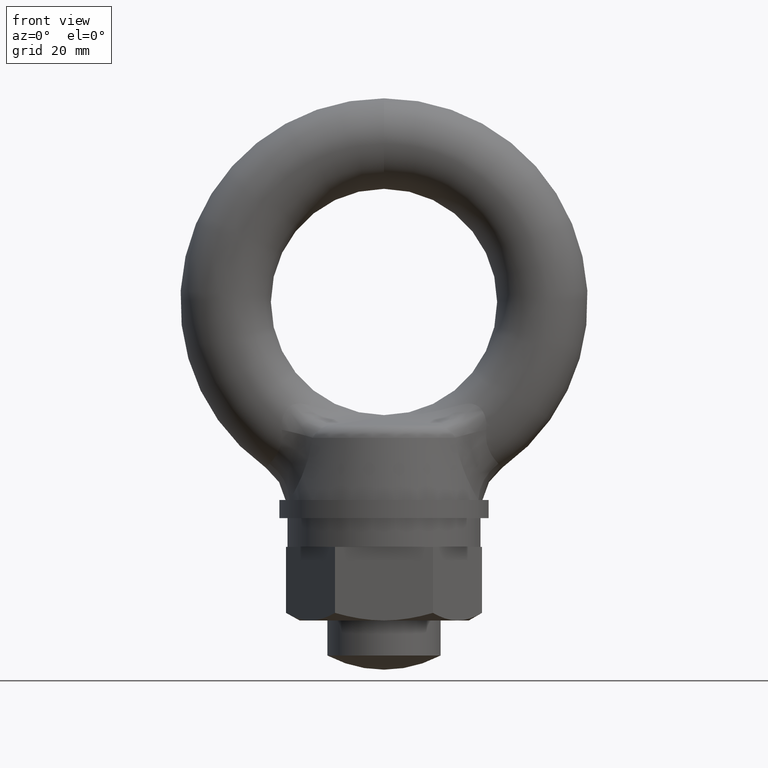
[diagram: clean part render]
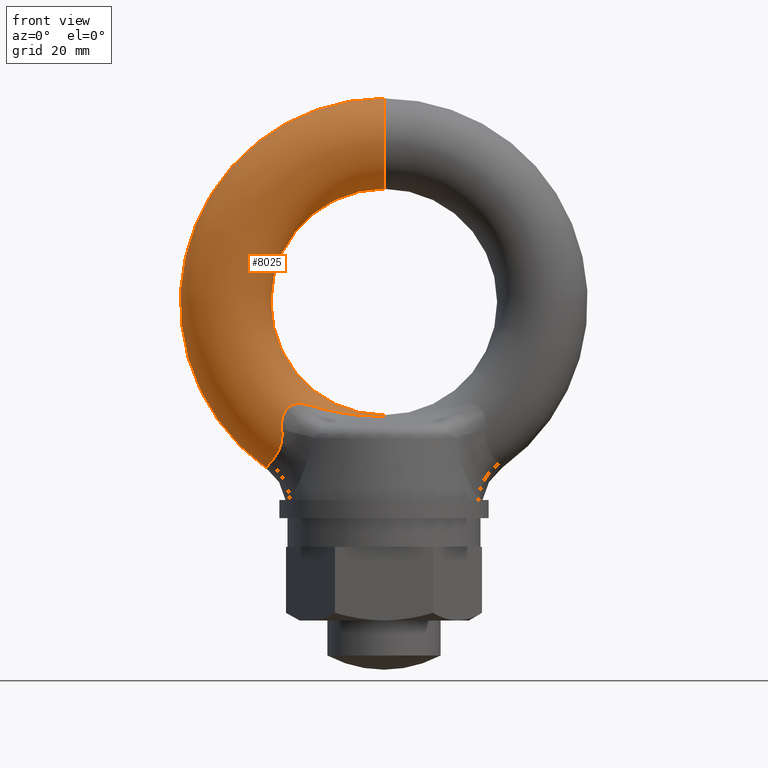
[diagram: same view with one face highlighted and labeled with its STEP entity id]
A machine part, front view. The second image highlights one B-rep face of the part: STEP entity #8025.
In plain terms, the highlighted toroidal blend (fillet) surface has major radius 28 mm and minor (blend) radius 8 mm.
Its self-contained STEP definition (entity closure, byte-faithful):
#4974 = DIRECTION ( 'NONE',  ( 0.0000000000000000000, 0.0000000000000000000, -1.000000000000000000 ) ) ;
#4975 = DIRECTION ( 'NONE',  ( 0.0000000000000000000, -1.000000000000000000, 0.0000000000000000000 ) ) ;
#5133 = CARTESIAN_POINT ( 'NONE',  ( 0.0000000000000000000, 9.796850830579018100E-016, 0.0000000000000000000 ) ) ;
#5134 = AXIS2_PLACEMENT_3D ( 'NONE', #5133, #4975, #4974 ) ;
#5135 = CIRCLE ( 'NONE', #5134, 20.00000000000000000 ) ;
#5137 = DIRECTION ( 'NONE',  ( 0.0000000000000000000, 0.0000000000000000000, 1.000000000000000000 ) ) ;
#5138 = DIRECTION ( 'NONE',  ( -1.000000000000000000, 0.0000000000000000000, 0.0000000000000000000 ) ) ;
#5139 = CARTESIAN_POINT ( 'NONE',  ( 0.0000000000000000000, 0.0000000000000000000, -28.00000000000000000 ) ) ;
#5140 = AXIS2_PLACEMENT_3D ( 'NONE', #5139, #5138, #5137 ) ;
#5141 = CIRCLE ( 'NONE', #5140, 8.000000000000000000 ) ;
#7950 = VERTEX_POINT ( 'NONE', #8684 ) ;
#7967 = ORIENTED_EDGE ( 'NONE', *, *, #7968, .T. ) ;
#7968 = EDGE_CURVE ( 'NONE', #7950, #7969, #8460, .T. ) ;
#7969 = VERTEX_POINT ( 'NONE', #8461 ) ;
#7970 = VERTEX_POINT ( 'NONE', #8459 ) ;
#8023 = EDGE_LOOP ( 'NONE', ( #8026, #8030, #8033, #8036, #8039, #7967, #8280, #8282 ) ) ;
#8025 = ADVANCED_FACE ( 'NONE', ( #8574 ), #8572, .T. ) ;
#8026 = ORIENTED_EDGE ( 'NONE', *, *, #8027, .F. ) ;
#8027 = EDGE_CURVE ( 'NONE', #8028, #8029, #8568, .T. ) ;
#8028 = VERTEX_POINT ( 'NONE', #8563 ) ;
#8029 = VERTEX_POINT ( 'NONE', #8562 ) ;
#8030 = ORIENTED_EDGE ( 'NONE', *, *, #8031, .T. ) ;
#8031 = EDGE_CURVE ( 'NONE', #8028, #8032, #8561, .T. ) ;
#8032 = VERTEX_POINT ( 'NONE', #8556 ) ;
#8033 = ORIENTED_EDGE ( 'NONE', *, *, #8034, .T. ) ;
#8034 = EDGE_CURVE ( 'NONE', #8032, #8035, #8555, .T. ) ;
#8035 = VERTEX_POINT ( 'NONE', #8554 ) ;
#8036 = ORIENTED_EDGE ( 'NONE', *, *, #8037, .T. ) ;
#8037 = EDGE_CURVE ( 'NONE', #8035, #8038, #8661, .T. ) ;
#8038 = VERTEX_POINT ( 'NONE', #8711 ) ;
#8039 = ORIENTED_EDGE ( 'NONE', *, *, #8040, .T. ) ;
#8040 = EDGE_CURVE ( 'NONE', #8038, #7950, #8929, .T. ) ;
#8280 = ORIENTED_EDGE ( 'NONE', *, *, #8281, .T. ) ;
#8281 = EDGE_CURVE ( 'NONE', #7969, #7970, #5141, .T. ) ;
#8282 = ORIENTED_EDGE ( 'NONE', *, *, #8283, .F. ) ;
#8283 = EDGE_CURVE ( 'NONE', #8029, #7970, #5135, .T. ) ;
#8446 = CARTESIAN_POINT ( 'NONE',  ( -1.442697845560770200, -1.861999122008241200, -20.16971613795676200 ) ) ;
#8447 = CARTESIAN_POINT ( 'NONE',  ( -2.288186762667789900, -2.095962064465069400, -20.15610451816338500 ) ) ;
#8448 = CARTESIAN_POINT ( 'NONE',  ( -2.844284425707784600, -2.275894574762710400, -20.13577273363174000 ) ) ;
#8449 = CARTESIAN_POINT ( 'NONE',  ( -4.507113680566904500, -2.822904474455817200, -20.03377866517443800 ) ) ;
#8450 = CARTESIAN_POINT ( 'NONE',  ( -5.607621948508660000, -3.204019384009087400, -19.91148190844952000 ) ) ;
#8451 = CARTESIAN_POINT ( 'NONE',  ( -7.792840797011284500, -3.963240333849474600, -19.57153100779552800 ) ) ;
#8452 = CARTESIAN_POINT ( 'NONE',  ( -8.874770829690676900, -4.343217868695373500, -19.35477693205997000 ) ) ;
#8453 = CARTESIAN_POINT ( 'NONE',  ( -11.02624808514249800, -5.094259217671004900, -18.85268854059859900 ) ) ;
#8454 = CARTESIAN_POINT ( 'NONE',  ( -12.09568278882729900, -5.465681299482348300, -18.56740552890373800 ) ) ;
#8455 = CARTESIAN_POINT ( 'NONE',  ( -13.16581114616844100, -5.822891640927250200, -18.26337593279295000 ) ) ;
#8459 = CARTESIAN_POINT ( 'NONE',  ( 0.0000000000000000000, 9.796850830579018100E-016, -20.00000000000000000 ) ) ;
#8460 = B_SPLINE_CURVE_WITH_KNOTS ( 'NONE', 3,
 ( #8455, #8454, #8453, #8452, #8451, #8450, #8449, #8448, #8447, #8446, #8655, #8654, #8653, #8652 ),
 .UNSPECIFIED., .F., .F.,
 ( 4, 2, 2, 2, 2, 2, 4 ),
 ( 0.0000000000000000000, 0.003500089843752328500, 0.007000179687504657000, 0.01050026953125698600, 0.01225031445313314900, 0.01312533691407123200, 0.01400035937500931400 ),
 .UNSPECIFIED. ) ;
#8461 = CARTESIAN_POINT ( 'NONE',  ( -6.801776097265342600E-013, -1.648912988659337200, -20.17177632180642600 ) ) ;
#8549 = CARTESIAN_POINT ( 'NONE',  ( -20.73540599022221900, -1.666234829499332100, -29.22248958426969200 ) ) ;
#8550 = CARTESIAN_POINT ( 'NONE',  ( -20.76888547548118400, -1.332880035850257500, -29.27674697320311700 ) ) ;
#8551 = CARTESIAN_POINT ( 'NONE',  ( -20.81241227235394900, -0.6665516782714794300, -29.34876666378846700 ) ) ;
#8552 = CARTESIAN_POINT ( 'NONE',  ( -20.82274396233959400, -0.3333125823818162700, -29.36687477207695100 ) ) ;
#8553 = CARTESIAN_POINT ( 'NONE',  ( -20.82274396233959700, -4.779909794809850600E-016, -29.36687477207695500 ) ) ;
#8554 = CARTESIAN_POINT ( 'NONE',  ( -20.22635143677735000, -3.850677136497690200, -28.57893508878720100 ) ) ;
#8555 = B_SPLINE_CURVE_WITH_KNOTS ( 'NONE', 3,
 ( #8553, #8552, #8551, #8550, #8549, #8665, #8664, #8663 ),
 .UNSPECIFIED., .F., .F.,
 ( 4, 2, 2, 4 ),
 ( 0.004061130604967868800, 0.005076329865826367300, 0.006091529126684865800, 0.008121927648401864500 ),
 .UNSPECIFIED. ) ;
#8556 = CARTESIAN_POINT ( 'NONE',  ( -20.82274396233959700, -4.779909794809850600E-016, -29.36687477207695500 ) ) ;
#8557 = DIRECTION ( 'NONE',  ( 0.0000000000000000000, 0.0000000000000000000, -1.000000000000000000 ) ) ;
#8558 = DIRECTION ( 'NONE',  ( 0.0000000000000000000, -1.000000000000000000, 0.0000000000000000000 ) ) ;
#8559 = CARTESIAN_POINT ( 'NONE',  ( 0.0000000000000000000, 0.0000000000000000000, 0.0000000000000000000 ) ) ;
#8560 = AXIS2_PLACEMENT_3D ( 'NONE', #8559, #8558, #8557 ) ;
#8561 = CIRCLE ( 'NONE', #8560, 36.00000000000000700 ) ;
#8562 = CARTESIAN_POINT ( 'NONE',  ( 2.449212707644754900E-015, 0.0000000000000000000, 20.00000000000000000 ) ) ;
#8563 = CARTESIAN_POINT ( 'NONE',  ( 4.408582873760558900E-015, 0.0000000000000000000, 36.00000000000000700 ) ) ;
#8564 = DIRECTION ( 'NONE',  ( -1.224606353822377000E-016, 0.0000000000000000000, -1.000000000000000000 ) ) ;
#8565 = DIRECTION ( 'NONE',  ( 1.000000000000000000, 0.0000000000000000000, -1.224606353822377300E-016 ) ) ;
#8566 = CARTESIAN_POINT ( 'NONE',  ( 3.428897790702656300E-015, 0.0000000000000000000, 28.00000000000000000 ) ) ;
#8567 = AXIS2_PLACEMENT_3D ( 'NONE', #8566, #8565, #8564 ) ;
#8568 = CIRCLE ( 'NONE', #8567, 8.000000000000000000 ) ;
#8569 = DIRECTION ( 'NONE',  ( 0.0000000000000000000, 0.0000000000000000000, -1.000000000000000000 ) ) ;
#8570 = DIRECTION ( 'NONE',  ( 0.0000000000000000000, -1.000000000000000000, 0.0000000000000000000 ) ) ;
#8571 = AXIS2_PLACEMENT_3D ( 'NONE', #8573, #8570, #8569 ) ;
#8572 = TOROIDAL_SURFACE ( 'NONE', #8571, 28.00000000000000000, 8.000000000000000000 ) ;
#8573 = CARTESIAN_POINT ( 'NONE',  ( 0.0000000000000000000, 0.0000000000000000000, 0.0000000000000000000 ) ) ;
#8574 = FACE_OUTER_BOUND ( 'NONE', #8023, .T. ) ;
#8652 = CARTESIAN_POINT ( 'NONE',  ( -6.801776097265342600E-013, -1.648912988659337200, -20.17177632180642600 ) ) ;
#8653 = CARTESIAN_POINT ( 'NONE',  ( -0.2927174952643083500, -1.648912988659391600, -20.17177632180643000 ) ) ;
#8654 = CARTESIAN_POINT ( 'NONE',  ( -0.5844058307862495200, -1.682952176673653500, -20.17240612736618000 ) ) ;
#8655 = CARTESIAN_POINT ( 'NONE',  ( -1.158679247754199400, -1.790291525782435900, -20.17148670969874800 ) ) ;
#8661 = B_SPLINE_CURVE_WITH_KNOTS ( 'NONE', 3,
 ( #8903, #8902, #8901, #8900, #8710, #8709, #8708, #8707, #8729, #8728, #8727, #8726, #8725, #8724, #8932, #8931 ),
 .UNSPECIFIED., .F., .F.,
 ( 4, 2, 2, 2, 2, 2, 2, 4 ),
 ( 0.01610551802902950400, 0.01711428254501621100, 0.01812304706100292100, 0.02014057609297633900, 0.02114934060896304900, 0.02215810512494975600, 0.02316686964093646700, 0.02417563415692317700 ),
 .UNSPECIFIED. ) ;
#8663 = CARTESIAN_POINT ( 'NONE',  ( -20.22635143677735000, -3.850677136497690200, -28.57893508878720100 ) ) ;
#8664 = CARTESIAN_POINT ( 'NONE',  ( -20.45218448737302100, -3.258859881794897700, -28.81724781712205500 ) ) ;
#8665 = CARTESIAN_POINT ( 'NONE',  ( -20.59603642070353400, -2.638285941380809500, -29.01523389992597400 ) ) ;
#8684 = CARTESIAN_POINT ( 'NONE',  ( -13.16581114616844100, -5.822891640927250200, -18.26337593279295000 ) ) ;
#8707 = CARTESIAN_POINT ( 'NONE',  ( -18.52675622652377600, -6.940743853943771100, -26.08212912476770700 ) ) ;
#8708 = CARTESIAN_POINT ( 'NONE',  ( -18.89647459336574500, -6.400572332127117300, -26.86654441111974700 ) ) ;
#8709 = CARTESIAN_POINT ( 'NONE',  ( -19.18056745787588800, -5.971913125181020900, -27.30223167005001300 ) ) ;
#8710 = CARTESIAN_POINT ( 'NONE',  ( -19.59844567961869200, -5.230220122879413400, -27.86015683620673000 ) ) ;
#8711 = CARTESIAN_POINT ( 'NONE',  ( -18.07603648372269600, -7.945372300636390300, -22.59188056541010100 ) ) ;
#8713 = CARTESIAN_POINT ( 'NONE',  ( -18.12260647304777500, -7.994548373312367700, -21.87993876361077000 ) ) ;
#8714 = CARTESIAN_POINT ( 'NONE',  ( -18.11356389061676700, -7.975347067419112300, -22.23504698598968300 ) ) ;
#8715 = CARTESIAN_POINT ( 'NONE',  ( -18.07603648372269600, -7.945372300636390300, -22.59188056541010100 ) ) ;
#8724 = CARTESIAN_POINT ( 'NONE',  ( -18.02294308099864400, -7.875853099239254400, -23.26748662458160800 ) ) ;
#8725 = CARTESIAN_POINT ( 'NONE',  ( -18.03220608410685300, -7.758872730580870700, -23.93743834888671500 ) ) ;
#8726 = CARTESIAN_POINT ( 'NONE',  ( -18.05958299474205500, -7.682464375572249300, -24.27030221711562800 ) ) ;
#8727 = CARTESIAN_POINT ( 'NONE',  ( -18.15940386058476000, -7.491003069110534300, -24.90757987614506800 ) ) ;
#8728 = CARTESIAN_POINT ( 'NONE',  ( -18.23158240396274400, -7.375861049605298100, -25.21381516144220900 ) ) ;
#8729 = CARTESIAN_POINT ( 'NONE',  ( -18.41493576542328000, -7.101233061930403600, -25.80065298911719300 ) ) ;
#8809 = CARTESIAN_POINT ( 'NONE',  ( -14.48640084289624300, -6.316706671593726300, -17.97827653573514100 ) ) ;
#8810 = CARTESIAN_POINT ( 'NONE',  ( -14.81750220859130400, -6.459337599431634700, -17.94770816610432000 ) ) ;
#8811 = CARTESIAN_POINT ( 'NONE',  ( -15.46841800058392600, -6.757654925999480300, -17.97081371513874300 ) ) ;
#8812 = CARTESIAN_POINT ( 'NONE',  ( -15.79371041505116900, -6.916048541418006400, -18.02615464871732000 ) ) ;
#8813 = CARTESIAN_POINT ( 'NONE',  ( -16.25075426370440100, -7.145089189322589200, -18.19840523469892800 ) ) ;
#8814 = CARTESIAN_POINT ( 'NONE',  ( -16.39998693967268700, -7.220948621053674200, -18.27151688570332100 ) ) ;
#8815 = CARTESIAN_POINT ( 'NONE',  ( -16.67968600936423200, -7.363606258302809200, -18.44515517041799100 ) ) ;
#8816 = CARTESIAN_POINT ( 'NONE',  ( -16.81098070684610200, -7.430801401975548600, -18.54565475779688900 ) ) ;
#8817 = CARTESIAN_POINT ( 'NONE',  ( -17.18029630242248700, -7.618353206800730200, -18.88785364446993100 ) ) ;
#8818 = CARTESIAN_POINT ( 'NONE',  ( -17.39227668821254400, -7.723481714237320400, -19.17235907743152600 ) ) ;
#8819 = CARTESIAN_POINT ( 'NONE',  ( -17.72613025056091700, -7.878836449315238100, -19.79191951133551100 ) ) ;
#8900 = CARTESIAN_POINT ( 'NONE',  ( -19.73498437145486400, -4.969169817883323700, -28.02760433356973000 ) ) ;
#8901 = CARTESIAN_POINT ( 'NONE',  ( -19.99258515031222700, -4.426770075522743000, -28.32748653070828800 ) ) ;
#8902 = CARTESIAN_POINT ( 'NONE',  ( -20.11427152996070700, -4.144393324560699200, -28.46066157516942100 ) ) ;
#8903 = CARTESIAN_POINT ( 'NONE',  ( -20.22635143677735000, -3.850677136497690200, -28.57893508878720100 ) ) ;
#8922 = CARTESIAN_POINT ( 'NONE',  ( -13.16581114616844100, -5.822891640927250200, -18.26337593279295000 ) ) ;
#8923 = CARTESIAN_POINT ( 'NONE',  ( -13.49608025271707000, -5.933135930324516100, -18.16954458781173500 ) ) ;
#8924 = CARTESIAN_POINT ( 'NONE',  ( -13.82544064071039000, -6.053619954093565300, -18.08939103995022200 ) ) ;
#8925 = CARTESIAN_POINT ( 'NONE',  ( -17.84987959965029000, -7.930441025987373200, -20.12360288935503400 ) ) ;
#8926 = CARTESIAN_POINT ( 'NONE',  ( -18.02878430504984000, -7.993391866429646200, -20.82156496729872000 ) ) ;
#8927 = CARTESIAN_POINT ( 'NONE',  ( -18.08006779931692900, -8.003476655799941500, -21.17334052725825800 ) ) ;
#8929 = B_SPLINE_CURVE_WITH_KNOTS ( 'NONE', 3,
 ( #8715, #8714, #8713, #8927, #8926, #8925, #8819, #8818, #8817, #8816, #8815, #8814, #8813, #8812, #8811, #8810, #8809, #8924, #8923, #8922 ),
 .UNSPECIFIED., .F., .F.,
 ( 4, 2, 2, 2, 2, 2, 2, 2, 2, 4 ),
 ( 0.0000000000000000000, 0.001061884085914531300, 0.002123768171829062500, 0.003185652257743594000, 0.004247536343658125100, 0.004778478386615393400, 0.005309420429572662600, 0.006371304515487208000, 0.007433188601401748100, 0.008495072687316288300 ),
 .UNSPECIFIED. ) ;
#8931 = CARTESIAN_POINT ( 'NONE',  ( -18.07603648372269600, -7.945372300636390300, -22.59188056541010100 ) ) ;
#8932 = CARTESIAN_POINT ( 'NONE',  ( -18.04054247296236100, -7.917021695497933100, -22.92937936844069600 ) ) ;